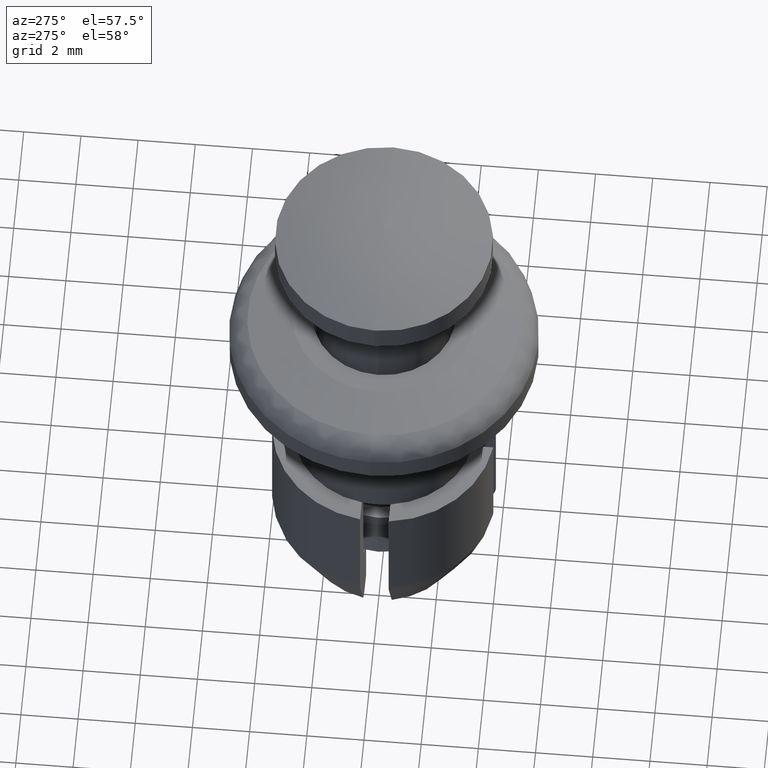
[diagram: clean part render]
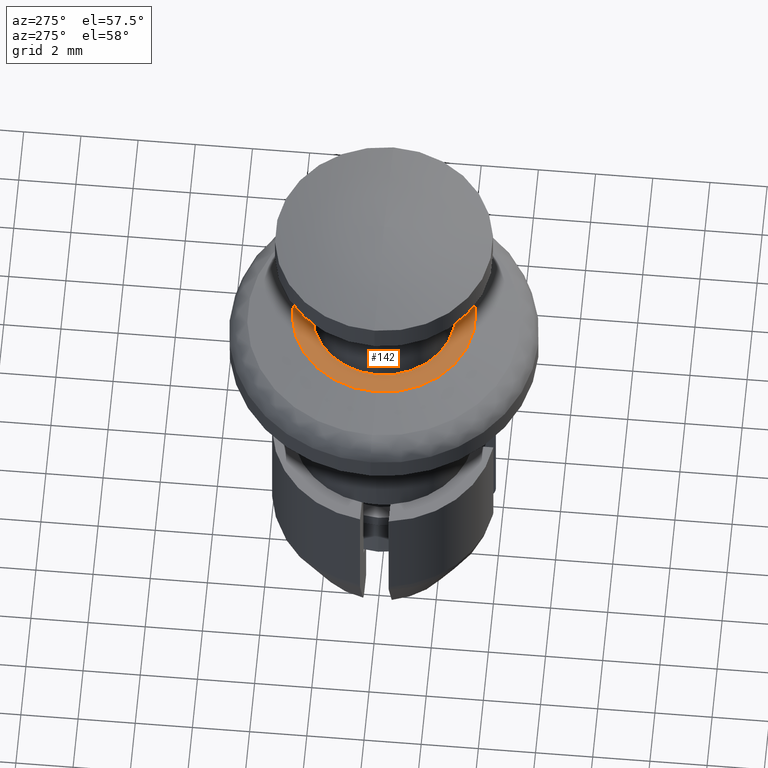
[diagram: same view with one face highlighted and labeled with its STEP entity id]
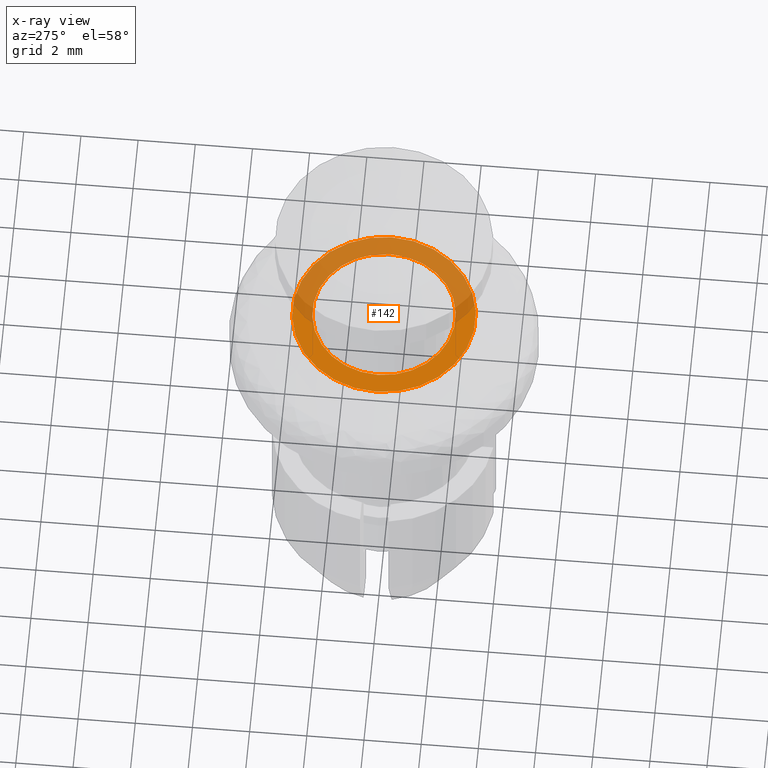
[diagram: x-ray of the same camera — body ghosted, the highlighted face saturated]
A machine part, auxiliary view. The second image highlights one B-rep face of the part: STEP entity #142.
The next image is the same camera in x-ray: the body ghosted, the highlighted face saturated — about 50% of this face is hidden behind the body in this view.
In plain terms, the highlighted planar face has unit normal (0, 0, -1).
Its self-contained STEP definition (entity closure, byte-faithful):
#142=ADVANCED_FACE('',(#492,#493),#491,.F.);
#491=PLANE('',#1218);
#492=FACE_OUTER_BOUND('',#1219,.T.);
#493=FACE_BOUND('',#1220,.T.);
#1215=CARTESIAN_POINT('',(7.36000000000E+00,-6.65107510106E+00,0.00000000000E+00));
#1216=DIRECTION('',(0.00000000000E+00,0.00000000000E+00,-1.00000000000E+00));
#1217=DIRECTION('',(-1.00000000000E+00,0.00000000000E+00,0.00000000000E+00));
#1218=AXIS2_PLACEMENT_3D('',#1215,#1216,#1217);
#1219=EDGE_LOOP('',(#1690,#1691));
#1220=EDGE_LOOP('',(#1692,#1693));
#1690=ORIENTED_EDGE('',*,*,#2040,.F.);
#1691=ORIENTED_EDGE('',*,*,#2041,.F.);
#1692=ORIENTED_EDGE('',*,*,#2042,.F.);
#1693=ORIENTED_EDGE('',*,*,#2043,.F.);
#2040=EDGE_CURVE('',#2774,#2775,#2776,.T.);
#2041=EDGE_CURVE('',#2775,#2774,#2782,.T.);
#2042=EDGE_CURVE('',#2788,#2789,#2790,.T.);
#2043=EDGE_CURVE('',#2789,#2788,#2796,.T.);
#2774=VERTEX_POINT('',#3877);
#2775=VERTEX_POINT('',#3878);
#2776=CIRCLE('',#3882,3.20000000000E+00);
#2782=CIRCLE('',#3886,3.20000000000E+00);
#2788=VERTEX_POINT('',#3887);
#2789=VERTEX_POINT('',#3888);
#2790=CIRCLE('',#3892,2.50000000000E+00);
#2796=CIRCLE('',#3896,2.50000000000E+00);
#3877=CARTESIAN_POINT('',(3.20000000000E+00,1.48029736617E-16,0.00000000000E+00));
#3878=CARTESIAN_POINT('',(-3.20000000000E+00,0.00000000000E+00,0.00000000000E+00));
#3879=CARTESIAN_POINT('',(0.00000000000E+00,0.00000000000E+00,0.00000000000E+00));
#3880=DIRECTION('',(-0.00000000000E+00,0.00000000000E+00,-1.00000000000E+00));
#3881=DIRECTION('',(-1.00000000000E+00,-1.22460635382E-16,0.00000000000E+00));
#3882=AXIS2_PLACEMENT_3D('',#3879,#3880,#3881);
#3883=CARTESIAN_POINT('',(0.00000000000E+00,0.00000000000E+00,0.00000000000E+00));
#3884=DIRECTION('',(-0.00000000000E+00,0.00000000000E+00,-1.00000000000E+00));
#3885=DIRECTION('',(-1.00000000000E+00,-1.22460635382E-16,0.00000000000E+00));
#3886=AXIS2_PLACEMENT_3D('',#3883,#3884,#3885);
#3887=CARTESIAN_POINT('',(2.50000000000E+00,2.96059473233E-16,0.00000000000E+00));
#3888=CARTESIAN_POINT('',(-2.50000000000E+00,0.00000000000E+00,0.00000000000E+00));
#3889=CARTESIAN_POINT('',(0.00000000000E+00,0.00000000000E+00,0.00000000000E+00));
#3890=DIRECTION('',(0.00000000000E+00,0.00000000000E+00,1.00000000000E+00));
#3891=DIRECTION('',(-1.00000000000E+00,-1.22460635382E-16,0.00000000000E+00));
#3892=AXIS2_PLACEMENT_3D('',#3889,#3890,#3891);
#3893=CARTESIAN_POINT('',(0.00000000000E+00,0.00000000000E+00,0.00000000000E+00));
#3894=DIRECTION('',(0.00000000000E+00,0.00000000000E+00,1.00000000000E+00));
#3895=DIRECTION('',(-1.00000000000E+00,-1.22460635382E-16,0.00000000000E+00));
#3896=AXIS2_PLACEMENT_3D('',#3893,#3894,#3895);